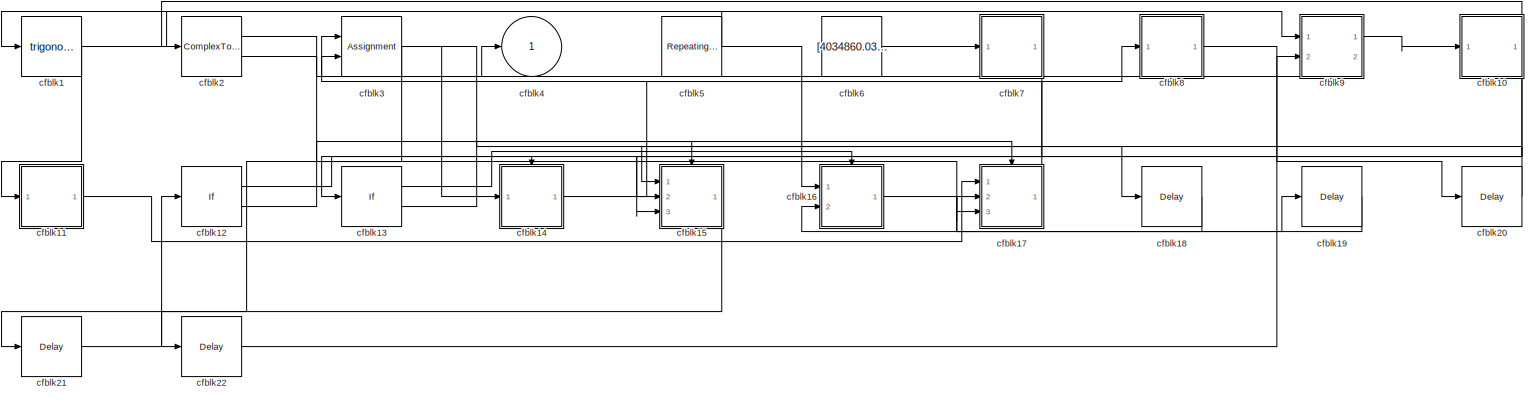
[diagram: root canvas - part 1/1, most of the canvas]
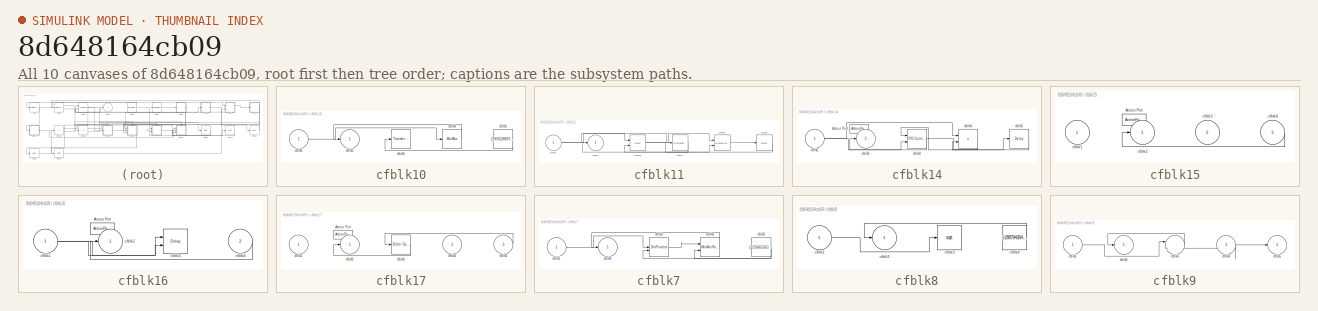
[diagram: thumbnail index - all 10 canvases of the model, root first then tree order]
MODEL slx_8d648164cb09
KIND model
CONFIG AbsTol = auto
CONFIG EnableMultiTasking = off
CONFIG FixedStep = auto
CONFIG MaxStep = auto
CONFIG MinStep = auto
CONFIG RelTol = 1e-3
CONFIG SampleTimeConstraint = Unconstrained
CONFIG SolverName = VariableStepAuto
CONFIG StartTime = 0.0
CONFIG StopTime = 10.0
BLOCK [Trigonometry] cfblk1
  Ports = [1, 1]
BLOCK [SubSystem] cfblk10
  Ports = [1, 1]
  RequestExecContextInheritance = off
BLOCK [Inport] cfblk10/cfblk1
BLOCK [Outport] cfblk10/cfblk2
BLOCK [Reference] cfblk10/cfblk3  REF=simulink/Discrete/Transfer Fcn
Real Zero
  Ports = [1, 1]
  SourceBlock = simulink/Discrete/Transfer Fcn\nReal Zero
  SourceProductBaseCode = SL
  SourceType = Transfer Fcn Real Zero
BLOCK [MinMax] cfblk10/cfblk4
  Ports = [1, 1]
BLOCK [Constant] cfblk10/cfblk5
  SampleTime = 1
  Value = [793529697.452219]
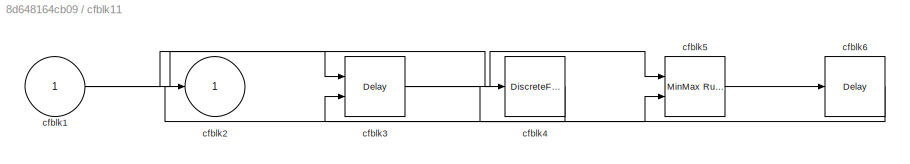
BLOCK [SubSystem] cfblk11
  Ports = [1, 1]
  RequestExecContextInheritance = off
BLOCK [Inport] cfblk11/cfblk1
BLOCK [Outport] cfblk11/cfblk2
BLOCK [Delay] cfblk11/cfblk3
  DelayLengthSource = Input port
  InputPortMap = u0,p1
  Ports = [2, 1]
  SampleTime = 1
BLOCK [DiscreteFir] cfblk11/cfblk4
  InputPortMap = u0
  OutputPortMap = o0
  Ports = [1, 1]
  SampleTime = 1
BLOCK [Reference] cfblk11/cfblk5  REF=simulink/Math
Operations/MinMax
Running
Resettable
  Ports = [2, 1]
  SourceBlock = simulink/Math\nOperations/MinMax\nRunning\nResettable
  SourceProductBaseCode = SL
  SourceType = MinMax Running Resettable
BLOCK [Delay] cfblk11/cfblk6
  InputPortMap = u0
  Ports = [1, 1]
  SampleTime = 1
BLOCK [If] cfblk12
  IfExpression = u1 >= 0
  Ports = [1, 2]
  SampleTime = 1
BLOCK [If] cfblk13
  IfExpression = u1 >= 0
  Ports = [1, 2]
  SampleTime = 1
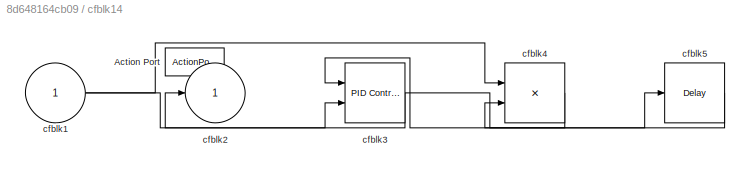
BLOCK [SubSystem] cfblk14
  Ports = [1, 1, 0, 0, 0, 0, 0, 1]
  RequestExecContextInheritance = off
  TreatAsAtomicUnit = on
BLOCK [ActionPort] cfblk14/Action Port
  ActionPortLabel = if(u1 >= 0)
BLOCK [Inport] cfblk14/cfblk1
BLOCK [Outport] cfblk14/cfblk2
BLOCK [Reference] cfblk14/cfblk3  REF=slpidlib/PID Controller (2DOF)
  Ports = [2, 1]
  SourceBlock = slpidlib/PID Controller (2DOF)
  SourceProductBaseCode = SL
  SourceType = PID 2dof
BLOCK [Product] cfblk14/cfblk4
  Ports = [2, 1]
BLOCK [Delay] cfblk14/cfblk5
  InputPortMap = u0
  Ports = [1, 1]
BLOCK [SubSystem] cfblk15
  Ports = [3, 1, 0, 0, 0, 0, 0, 1]
  RequestExecContextInheritance = off
  TreatAsAtomicUnit = on
BLOCK [ActionPort] cfblk15/Action Port
  ActionPortLabel = else
BLOCK [Inport] cfblk15/cfblk1
BLOCK [Outport] cfblk15/cfblk2
BLOCK [Inport] cfblk15/cfblk3
  Port = 2
BLOCK [Inport] cfblk15/cfblk4
  Port = 3
BLOCK [SubSystem] cfblk16
  Ports = [2, 1, 0, 0, 0, 0, 0, 1]
  RequestExecContextInheritance = off
  TreatAsAtomicUnit = on
BLOCK [ActionPort] cfblk16/Action Port
  ActionPortLabel = if(u1 >= 0)
BLOCK [Inport] cfblk16/cfblk1
BLOCK [Outport] cfblk16/cfblk2
BLOCK [Delay] cfblk16/cfblk3
  InputPortMap = u0,e6
  Ports = [2, 1]
  ShowEnablePort = on
BLOCK [Inport] cfblk16/cfblk4
  Port = 2
BLOCK [SubSystem] cfblk17
  Ports = [3, 1, 0, 0, 0, 0, 0, 1]
  RequestExecContextInheritance = off
  TreatAsAtomicUnit = on
BLOCK [ActionPort] cfblk17/Action Port
  ActionPortLabel = else
BLOCK [Inport] cfblk17/cfblk1
BLOCK [Outport] cfblk17/cfblk2
BLOCK [Reference] cfblk17/cfblk3  REF=simulink/Math
Operations/Slider
Gain
  Ports = [1, 1]
  SourceBlock = simulink/Math\nOperations/Slider\nGain
  SourceProductBaseCode = SL
  SourceType = Slider Gain
BLOCK [Inport] cfblk17/cfblk4
  Port = 2
BLOCK [Inport] cfblk17/cfblk5
  Port = 3
BLOCK [Delay] cfblk18
  InputPortMap = u0
  Ports = [1, 1]
  SampleTime = 1
BLOCK [Delay] cfblk19
  InputPortMap = u0
  Ports = [1, 1]
  SampleTime = 1
BLOCK [ComplexToRealImag] cfblk2
  Ports = [1, 2]
BLOCK [Delay] cfblk20
  InputPortMap = u0
  Ports = [1, 1]
  SampleTime = 1
BLOCK [Delay] cfblk21
  InputPortMap = u0
  Ports = [1, 1]
  SampleTime = 1
BLOCK [Delay] cfblk22
  InputPortMap = u0
  Ports = [1, 1]
  SampleTime = 1
BLOCK [Assignment] cfblk3
  DiagnosticForDimensions = Warning
  IndexOptions = Index vector (dialog)
  Indices = 1
  OutputSizes = 1
  Ports = [2, 1]
BLOCK [Outport] cfblk4
BLOCK [Reference] cfblk5  REF=simulink/Sources/Repeating
Sequence
  Ports = [0, 1]
  SourceBlock = simulink/Sources/Repeating\nSequence
  SourceProductBaseCode = SL
  SourceType = Repeating table
BLOCK [Constant] cfblk6
  SampleTime = 1
  Value = [4034860.037119]
BLOCK [SubSystem] cfblk7
  Ports = [1, 1]
  RequestExecContextInheritance = off
BLOCK [Inport] cfblk7/cfblk1
BLOCK [Outport] cfblk7/cfblk2
BLOCK [DotProduct] cfblk7/cfblk3
  OutDataTypeStr = Inherit: Inherit via internal rule
BLOCK [Reference] cfblk7/cfblk4  REF=simulink/Math
Operations/MinMax
Running
Resettable
  Ports = [2, 1]
  SourceBlock = simulink/Math\nOperations/MinMax\nRunning\nResettable
  SourceProductBaseCode = SL
  SourceType = MinMax Running Resettable
BLOCK [Constant] cfblk7/cfblk5
  SampleTime = 1
  Value = [225665263.000383]
BLOCK [SubSystem] cfblk8
  Ports = [1, 1]
  RequestExecContextInheritance = off
BLOCK [Inport] cfblk8/cfblk1
BLOCK [Outport] cfblk8/cfblk2
BLOCK [Sqrt] cfblk8/cfblk3
BLOCK [Constant] cfblk8/cfblk4
  SampleTime = 1
  Value = [-288794364.864803]
BLOCK [SubSystem] cfblk9
  Ports = [2, 2]
  RequestExecContextInheritance = off
BLOCK [Inport] cfblk9/cfblk1
BLOCK [Outport] cfblk9/cfblk2
BLOCK [Sum] cfblk9/cfblk3
  Inputs = |++
  Ports = [2, 1]
BLOCK [Inport] cfblk9/cfblk4
  Port = 2
BLOCK [Outport] cfblk9/cfblk5
  Port = 2
LINE cfblk10/cfblk1:1 -> cfblk10/cfblk4:1
LINE cfblk10/cfblk4:1 -> cfblk10/cfblk2:1
LINE cfblk10/cfblk5:1 -> cfblk10/cfblk3:1
NET cfblk10:1 -> cfblk15:2, cfblk15:3, cfblk2:1
NET cfblk11/cfblk1:1 -> cfblk11/cfblk3:1, cfblk11/cfblk4:1
NET cfblk11/cfblk3:1 -> cfblk11/cfblk5:1, cfblk11/cfblk5:2
LINE cfblk11/cfblk4:1 -> cfblk11/cfblk2:1
LINE cfblk11/cfblk5:1 -> cfblk11/cfblk6:1
LINE cfblk11/cfblk6:1 -> cfblk11/cfblk3:2
LINE cfblk11:1 -> cfblk17:1
LINE cfblk12:1 -> cfblk14:ifaction
LINE cfblk12:2 -> cfblk15:ifaction
LINE cfblk13:1 -> cfblk16:ifaction
LINE cfblk13:2 -> cfblk17:ifaction
NET cfblk14/cfblk1:1 -> cfblk14/cfblk3:2, cfblk14/cfblk4:1
NET cfblk14/cfblk3:1 -> cfblk14/cfblk2:1, cfblk14/cfblk5:1
LINE cfblk14/cfblk4:1 -> cfblk14/cfblk3:1
LINE cfblk14/cfblk5:1 -> cfblk14/cfblk4:2
LINE cfblk14:1 -> cfblk8:1
LINE cfblk15/cfblk4:1 -> cfblk15/cfblk2:1
LINE cfblk15:1 -> cfblk21:1
NET cfblk16/cfblk1:1 -> cfblk16/cfblk3:1, cfblk16/cfblk3:2
LINE cfblk16/cfblk4:1 -> cfblk16/cfblk2:1
LINE cfblk16:1 -> cfblk19:1
LINE cfblk17/cfblk3:1 -> cfblk17/cfblk2:1
LINE cfblk17/cfblk5:1 -> cfblk17/cfblk3:1
LINE cfblk17:1 -> cfblk3:1
LINE cfblk18:1 -> cfblk16:2
LINE cfblk19:1 -> cfblk17:2
NET cfblk1:1 -> cfblk11:1, cfblk9:1
LINE cfblk20:1 -> cfblk15:1
LINE cfblk21:1 -> cfblk12:1
LINE cfblk22:1 -> cfblk9:2
LINE cfblk2:1 -> cfblk17:3
LINE cfblk2:2 -> cfblk4:1
NET cfblk3:1 -> cfblk14:1, cfblk18:1, cfblk22:1
NET cfblk5:1 -> cfblk16:1, cfblk1:1
LINE cfblk6:1 -> cfblk7:1
LINE cfblk7/cfblk1:1 -> cfblk7/cfblk3:1
LINE cfblk7/cfblk3:1 -> cfblk7/cfblk4:1
LINE cfblk7/cfblk4:1 -> cfblk7/cfblk2:1
NET cfblk7/cfblk5:1 -> cfblk7/cfblk3:2, cfblk7/cfblk4:2
LINE cfblk7:1 -> cfblk13:1
LINE cfblk8/cfblk1:1 -> cfblk8/cfblk3:1
LINE cfblk8/cfblk4:1 -> cfblk8/cfblk2:1
LINE cfblk8:1 -> cfblk20:1
LINE cfblk9/cfblk1:1 -> cfblk9/cfblk3:1
LINE cfblk9/cfblk3:1 -> cfblk9/cfblk2:1
NET cfblk9/cfblk4:1 -> cfblk9/cfblk3:2, cfblk9/cfblk5:1
LINE cfblk9:1 -> cfblk10:1
LINE cfblk9:2 -> cfblk3:2
note: NET lines group one-source signal fan-out (src -> all destinations, sorted); 1:1 wires keep LINE
